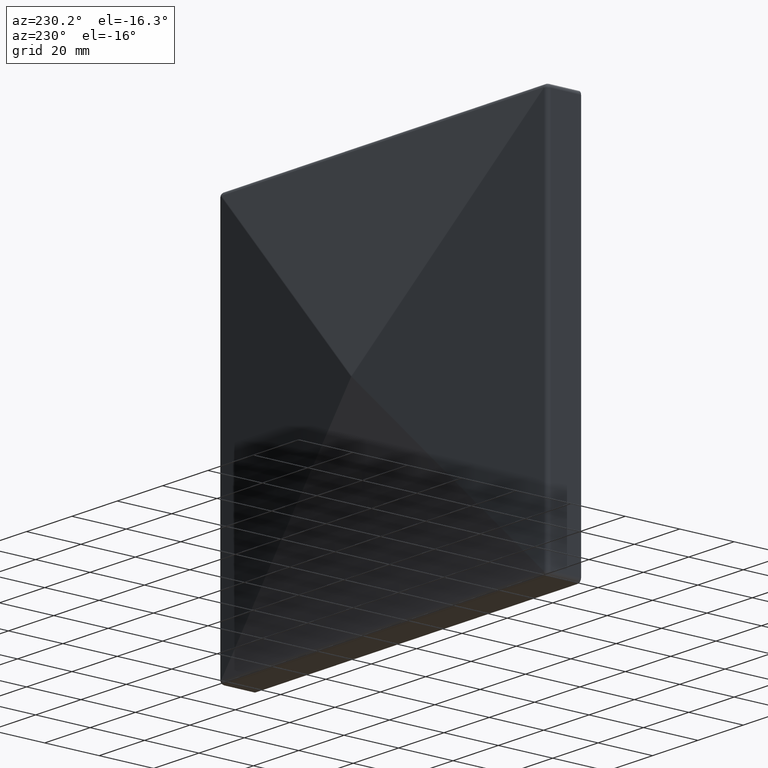
[diagram: clean part render]
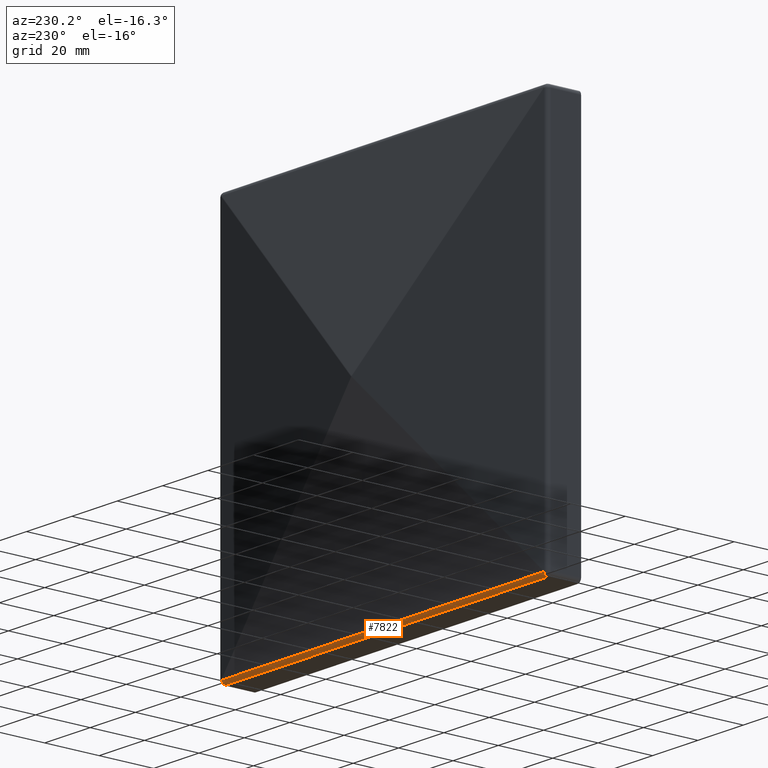
[diagram: same view with one face highlighted and labeled with its STEP entity id]
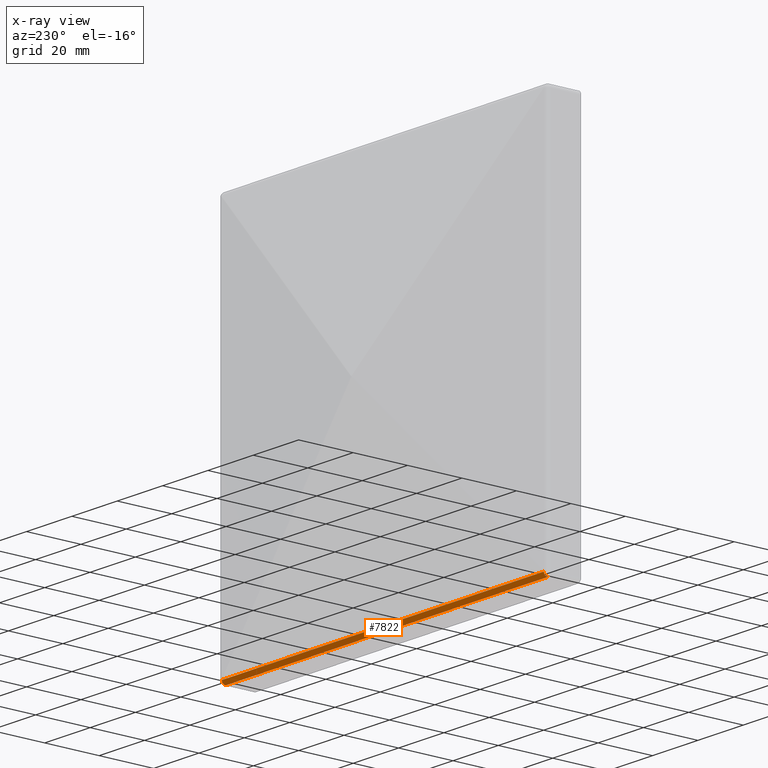
[diagram: x-ray of the same camera — body ghosted, the highlighted face saturated]
A machine part, auxiliary view. The second image highlights one B-rep face of the part: STEP entity #7822.
The next image is the same camera in x-ray: the body ghosted, the highlighted face saturated — about 0% of this face is hidden behind the body in this view.
In plain terms, the highlighted cylindrical surface (edge-blend (fillet) strip) has radius 1.5 mm, axis along (-1, -0, 0).
Its self-contained STEP definition (entity closure, byte-faithful):
#749 = VERTEX_POINT ( 'NONE', #5884 ) ;
#968 = VERTEX_POINT ( 'NONE', #6928 ) ;
#1186 = CARTESIAN_POINT ( 'NONE',  ( -71.00000000000001400, 11.00000000000000000, -71.00000000000000000 ) ) ;
#1425 = CARTESIAN_POINT ( 'NONE',  ( 71.00000000000001400, 11.00000000000000000, -71.00000000000002800 ) ) ;
#1675 = EDGE_CURVE ( 'NONE', #9488, #749, #8826, .T. ) ;
#2162 = CARTESIAN_POINT ( 'NONE',  ( 72.50000000000001400, 11.00000000000000000, -72.50000000000002800 ) ) ;
#2365 = LINE ( 'NONE', #2162, #10335 ) ;
#2596 = CIRCLE ( 'NONE', #5034, 1.500000000000001300 ) ;
#2791 = ORIENTED_EDGE ( 'NONE', *, *, #8034, .T. ) ;
#3058 = DIRECTION ( 'NONE',  ( -1.000000000000000000, -0.0000000000000000000, 2.220446049250313100E-016 ) ) ;
#3074 = CARTESIAN_POINT ( 'NONE',  ( 71.00000000000001400, 11.00000000000000000, -72.50000000000002800 ) ) ;
#3089 = DIRECTION ( 'NONE',  ( 0.0000000000000000000, 0.0000000000000000000, 1.000000000000000000 ) ) ;
#3874 = DIRECTION ( 'NONE',  ( 1.000000000000000000, 0.0000000000000000000, -2.220446049250313100E-016 ) ) ;
#3905 = DIRECTION ( 'NONE',  ( 0.0000000000000000000, -2.312964634635740700E-015, 1.000000000000000000 ) ) ;
#4425 = CARTESIAN_POINT ( 'NONE',  ( 72.50000000000001400, 12.48070272133805000, -71.23983213092097300 ) ) ;
#4426 = ORIENTED_EDGE ( 'NONE', *, *, #1675, .F. ) ;
#4530 = AXIS2_PLACEMENT_3D ( 'NONE', #1425, #3058, #3089 ) ;
#5034 = AXIS2_PLACEMENT_3D ( 'NONE', #1186, #3874, #3905 ) ;
#5159 = DIRECTION ( 'NONE',  ( -1.000000000000000000, -0.0000000000000000000, 2.220446049250313100E-016 ) ) ;
#5165 = ORIENTED_EDGE ( 'NONE', *, *, #6099, .T. ) ;
#5884 = CARTESIAN_POINT ( 'NONE',  ( -71.00000000000001400, 12.48070272133805000, -71.23983213092094500 ) ) ;
#6099 = EDGE_CURVE ( 'NONE', #9488, #7097, #9283, .T. ) ;
#6928 = CARTESIAN_POINT ( 'NONE',  ( -71.00000000000001400, 11.00000000000000000, -72.50000000000000000 ) ) ;
#7097 = VERTEX_POINT ( 'NONE', #3074 ) ;
#7214 = DIRECTION ( 'NONE',  ( -1.000000000000000000, -0.0000000000000000000, 2.220446049250313100E-016 ) ) ;
#7311 = CARTESIAN_POINT ( 'NONE',  ( 72.50000000000001400, 11.00000000000000000, -71.00000000000002800 ) ) ;
#7465 = ORIENTED_EDGE ( 'NONE', *, *, #10077, .T. ) ;
#7620 = FACE_OUTER_BOUND ( 'NONE', #8984, .T. ) ;
#7822 = ADVANCED_FACE ( 'NONE', ( #7620 ), #9436, .T. ) ;
#8034 = EDGE_CURVE ( 'NONE', #968, #749, #2596, .T. ) ;
#8560 = VECTOR ( 'NONE', #5159, 1000.000000000000000 ) ;
#8789 = DIRECTION ( 'NONE',  ( -1.000000000000000000, -0.0000000000000000000, 2.220446049250313100E-016 ) ) ;
#8826 = LINE ( 'NONE', #4425, #8560 ) ;
#8984 = EDGE_LOOP ( 'NONE', ( #7465, #2791, #4426, #5165 ) ) ;
#9283 = CIRCLE ( 'NONE', #4530, 1.500000000000001300 ) ;
#9436 = CYLINDRICAL_SURFACE ( 'NONE', #10034, 1.500000000000001300 ) ;
#9488 = VERTEX_POINT ( 'NONE', #9579 ) ;
#9579 = CARTESIAN_POINT ( 'NONE',  ( 71.00000000000001400, 12.48070272133805000, -71.23983213092097300 ) ) ;
#10034 = AXIS2_PLACEMENT_3D ( 'NONE', #7311, #7214, #10607 ) ;
#10077 = EDGE_CURVE ( 'NONE', #7097, #968, #2365, .T. ) ;
#10335 = VECTOR ( 'NONE', #8789, 1000.000000000000000 ) ;
#10607 = DIRECTION ( 'NONE',  ( 0.0000000000000000000, 0.0000000000000000000, 1.000000000000000000 ) ) ;